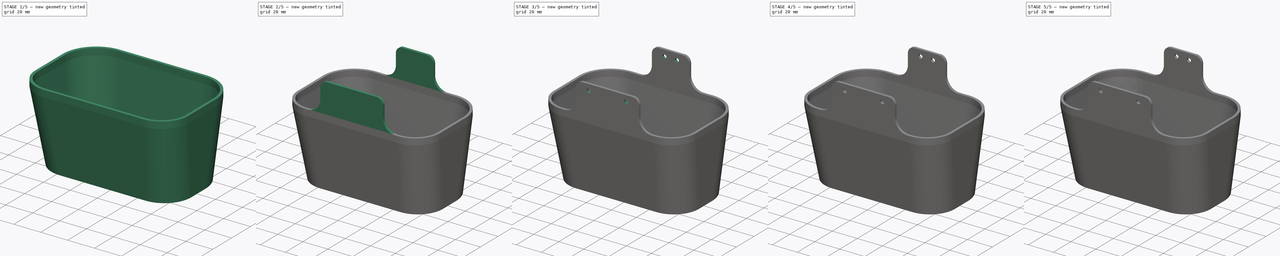
[diagram: build sequence overview — one tinted view per stage of 5, left to right]
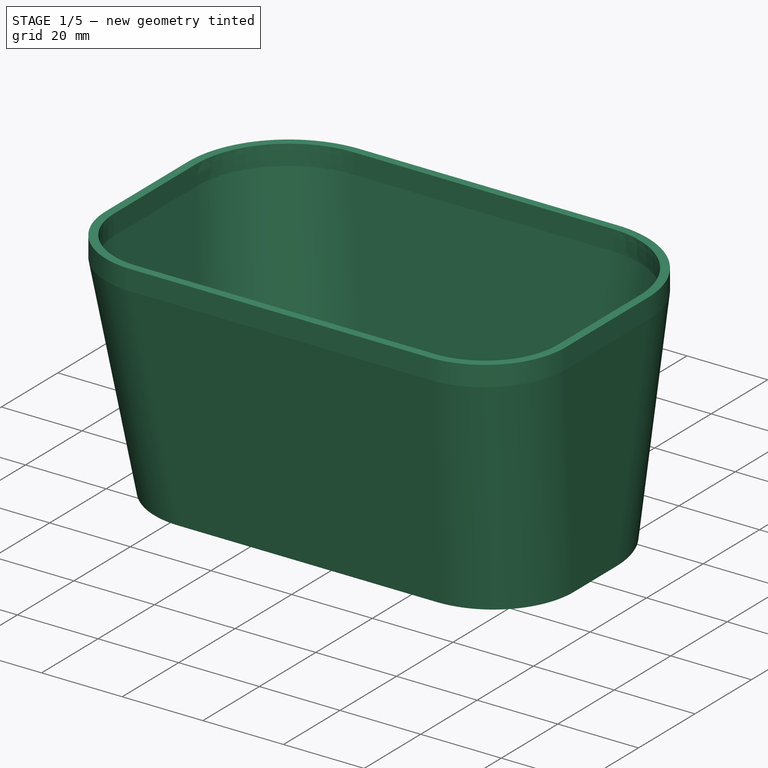
[diagram: stage 1 of 5 — iso view after this stage's code; geometry added in this stage tinted green]
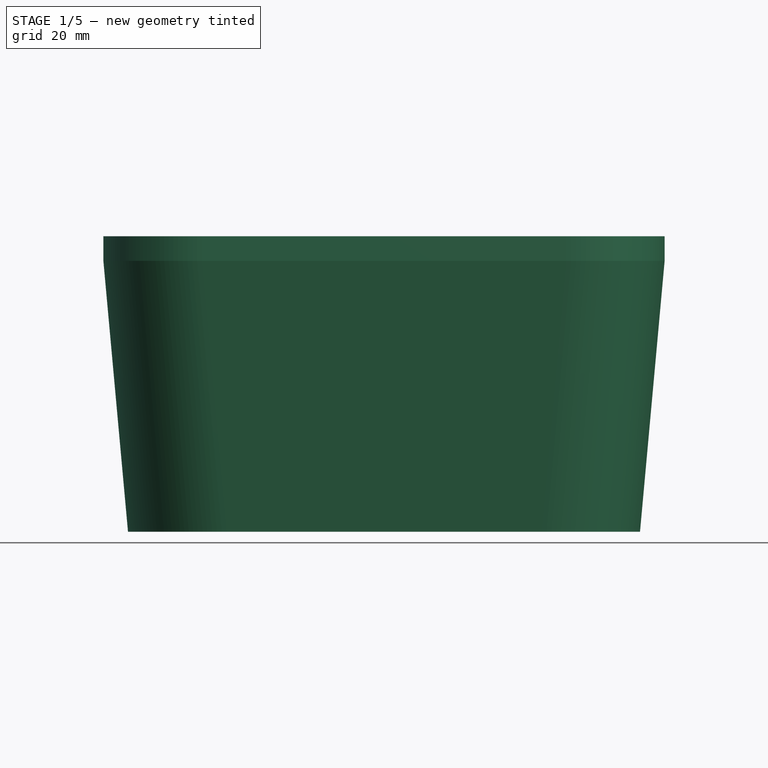
[diagram: stage 1 of 5 — front view after this stage's code; geometry added in this stage tinted green]
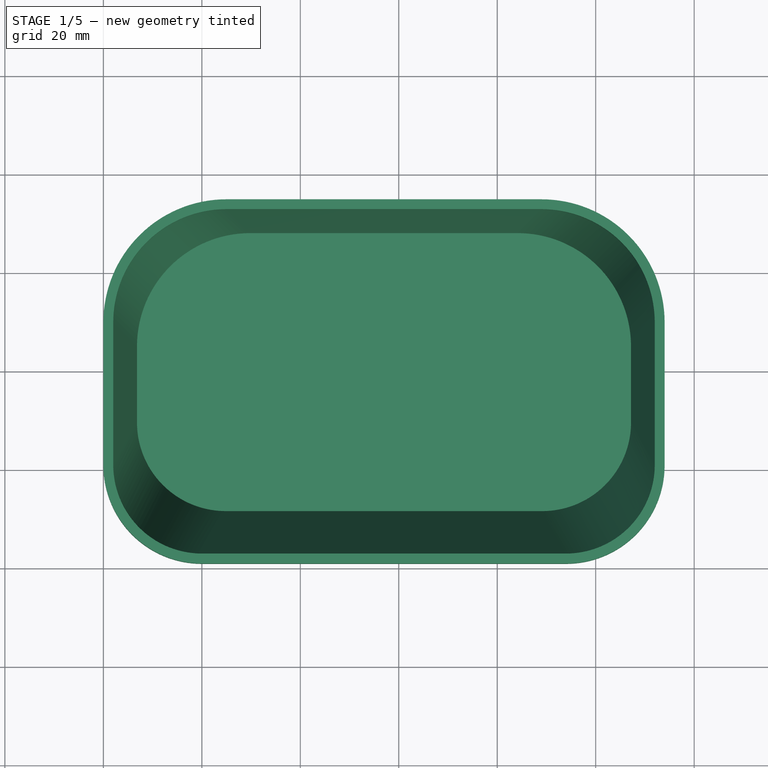
[diagram: stage 1 of 5 — top view after this stage's code; geometry added in this stage tinted green]
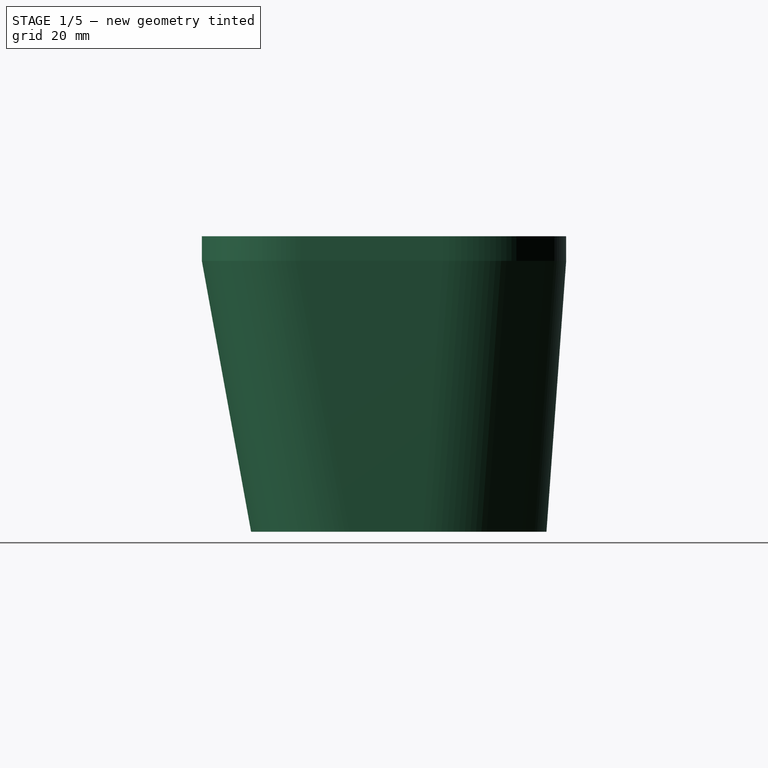
[diagram: stage 1 of 5 — right view after this stage's code; geometry added in this stage tinted green]
FCSTD DOCUMENT  (FreeCAD 0.18R4 (GitTag))
Label: Rear_Cover_long_1_8_TFT_v2
License: CreativeCommons Attribution-NonCommercial
LicenseURL: http://creativecommons.org/licenses/by-nc/4.0/
objects: Sketcher::SketchObject×12, PartDesign::Pocket×9, PartDesign::Pad×3, PartDesign::Fillet×3, PartDesign::AdditiveLoft×1, PartDesign::Thickness×1, PartDesign::Body×1
note: 43 computed .brp shape members not serialized (recipe doc carries the construction recipe); baked Part::Feature solids carry a one-line shape summary decoded from their .brp

FEATURE [Sketcher::SketchObject] Sketch
  AttachmentOffset = pos=(0,0,55) rot=(0,0,1;0rad)
  MapMode = 5
  Placement = pos=(0,0,55) rot=(0,0,1;0rad)
  Support = -> [XY_Plane]
  sketch-geometry (8):
    g0: LineSegment StartX=25 StartY=74 StartZ=0 EndX=89 EndY=74 EndZ=0
    g1: LineSegment StartX=114 StartY=49 StartZ=0 EndX=114 EndY=20 EndZ=0
    g2: LineSegment StartX=94 StartY=0 StartZ=0 EndX=20 EndY=0 EndZ=0
    g3: LineSegment StartX=0 StartY=20 StartZ=0 EndX=0 EndY=49 EndZ=0
    g4: ArcOfCircle CenterX=20 CenterY=20 CenterZ=0 NormalX=0 NormalY=0 NormalZ=1 AngleXU=0 Radius=20 StartAngle=3.14159 EndAngle=4.71239
    g5: ArcOfCircle CenterX=25 CenterY=49 CenterZ=0 NormalX=0 NormalY=0 NormalZ=1 AngleXU=0 Radius=25 StartAngle=1.5708 EndAngle=3.14159
    g6: ArcOfCircle CenterX=89 CenterY=49 CenterZ=0 NormalX=0 NormalY=0 NormalZ=1 AngleXU=0 Radius=25 StartAngle=0 EndAngle=1.5708
    g7: ArcOfCircle CenterX=94 CenterY=20 CenterZ=0 NormalX=0 NormalY=0 NormalZ=1 AngleXU=0 Radius=20 StartAngle=4.71239 EndAngle=6.28319
  constraints (20):
    c: Horizontal(g0)
    c: Horizontal(g2)
    c: Vertical(g1)
    c: Vertical(g3)
    c: Tangent(g2,g4) = 1.5708
    c: Tangent(g3,g4) = 1.5708
    c: Tangent(g3,g5) = 1.5708
    c: Tangent(g0,g5) = 1.5708
    c: Tangent(g0,g6) = 1.5708
    c: Tangent(g1,g6) = 1.5708
    c: Tangent(g1,g7) = 1.5708
    c: Tangent(g2,g7) = 1.5708
    c: Equal(g4,g7)
    c: Equal(g5,g6)
    c: Radius(g6) = 25
    c: Radius(g7) = 20
    c: PointOnObject(g2,g-1)
    c: PointOnObject(g3,g-2)
    c: DistanceX(g3,g1) = 114
    c: DistanceY(g2,g0) = 74
FEATURE [Sketcher::SketchObject] Sketch001
  MapMode = 5
  Support = -> [XY_Plane]
  sketch-geometry (8):
    g0: LineSegment StartX=25 StartY=10 StartZ=0 EndX=89 EndY=10 EndZ=0
    g1: LineSegment StartX=109 StartY=30 StartZ=0 EndX=109 EndY=45 EndZ=0
    g2: LineSegment StartX=84 StartY=70 StartZ=0 EndX=30 EndY=70 EndZ=0
    g3: LineSegment StartX=5 StartY=45 StartZ=0 EndX=5 EndY=30 EndZ=0
    g4: ArcOfCircle CenterX=30 CenterY=45 CenterZ=0 NormalX=0 NormalY=0 NormalZ=1 AngleXU=0 Radius=25 StartAngle=1.5708 EndAngle=3.14159
    g5: ArcOfCircle CenterX=84 CenterY=45 CenterZ=0 NormalX=0 NormalY=0 NormalZ=1 AngleXU=0 Radius=25 StartAngle=0 EndAngle=1.5708
    g6: ArcOfCircle CenterX=89 CenterY=30 CenterZ=0 NormalX=0 NormalY=0 NormalZ=1 AngleXU=0 Radius=20 StartAngle=4.71239 EndAngle=6.28319
    g7: ArcOfCircle CenterX=25 CenterY=30 CenterZ=0 NormalX=0 NormalY=0 NormalZ=1 AngleXU=0 Radius=20 StartAngle=3.14159 EndAngle=4.71239
  constraints (20):
    c: Horizontal(g0)
    c: Horizontal(g2)
    c: Vertical(g1)
    c: Vertical(g3)
    c: Tangent(g3,g4) = -1.5708
    c: Tangent(g2,g4) = -1.5708
    c: Tangent(g2,g5) = -1.5708
    c: Tangent(g1,g5) = -1.5708
    c: Tangent(g1,g6) = -1.5708
    c: Tangent(g0,g6) = -1.5708
    c: Tangent(g0,g7) = -1.5708
    c: Tangent(g3,g7) = -1.5708
    c: Equal(g4,g5)
    c: Equal(g7,g6)
    c: Radius(g5) = 25
    c: Radius(g6) = 20
    c: DistanceY(g0,g2) = 60
    c: DistanceX(g3,g1) = 104
    c: DistanceY(g-1,g0) = 10
    c: DistanceX(g-1,g3) = 5
FEATURE [PartDesign::AdditiveLoft] AdditiveLoft  label="Baseplate"
  Closed = false
  Profile = -> Sketch001
  Ruled = false
  Sections = -> [Sketch]
FEATURE [PartDesign::Thickness] Thickness  label="Make Shell"
  Base = -> AdditiveLoft [Face3]
  BaseFeature = -> AdditiveLoft
  Join = 0
  Mode = 0
  Reversed = true
  Value = 2
FEATURE [PartDesign::Pad] Pad  label="Connection Ring"
  BaseFeature = -> Thickness
  Length = 5
  Length2 = 100
  Profile = -> Thickness [Face10]
  Type = 0
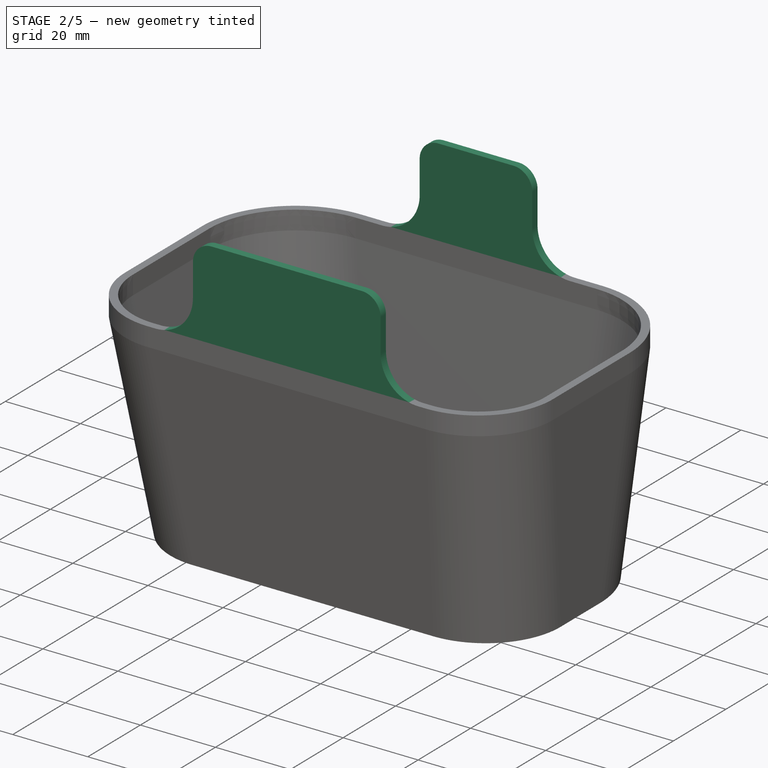
[diagram: stage 2 of 5 — iso view after this stage's code; geometry added in this stage tinted green]
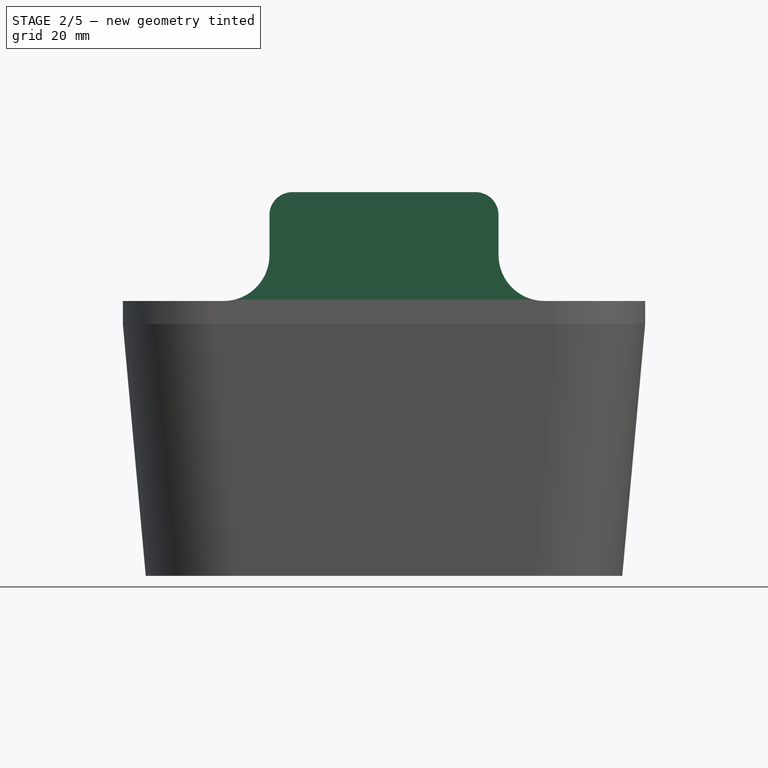
[diagram: stage 2 of 5 — front view after this stage's code; geometry added in this stage tinted green]
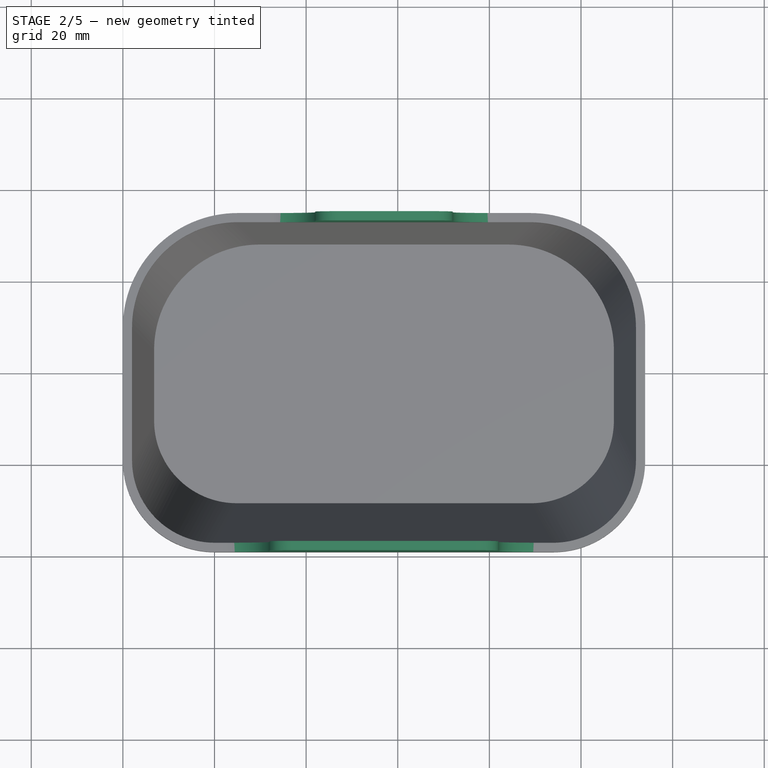
[diagram: stage 2 of 5 — top view after this stage's code; geometry added in this stage tinted green]
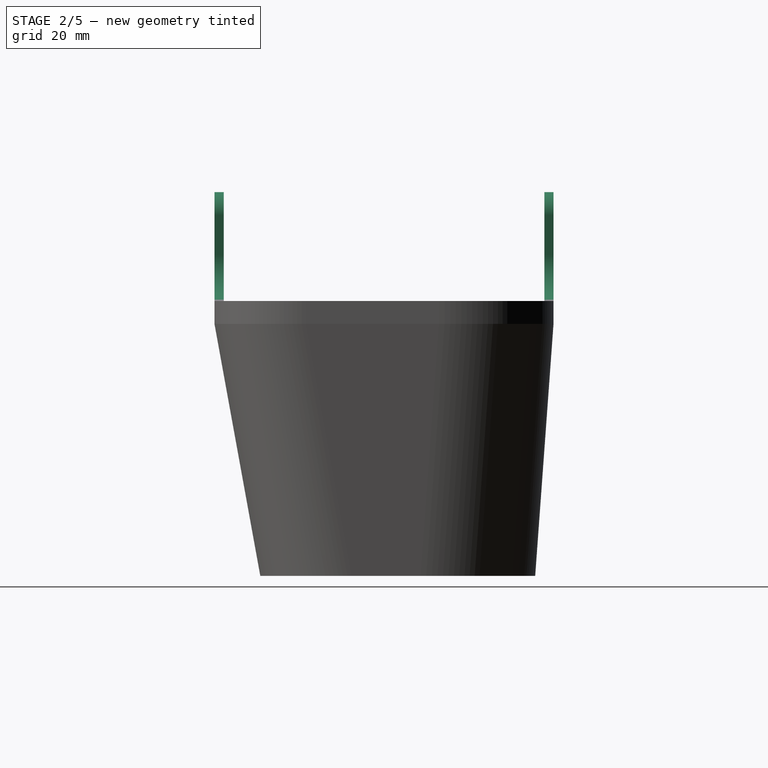
[diagram: stage 2 of 5 — right view after this stage's code; geometry added in this stage tinted green]
FEATURE [PartDesign::Pad] Pad001  label="Mounting Lip"
  BaseFeature = -> Pad
  Length = 23.75
  Length2 = 100
  Profile = -> Pad [Face18]
  Type = 0
FEATURE [Sketcher::SketchObject] Sketch002
  MapMode = 5
  Placement = pos=(0,0,0) rot=(1,0,0;1.5708rad)
  Support = -> [Pad001]
  sketch-geometry (10):
    g0: LineSegment StartX=0 StartY=83.75 StartZ=0 EndX=32 EndY=83.75 EndZ=0
    g1: LineSegment StartX=32 StartY=83.75 StartZ=0 EndX=32 EndY=70 EndZ=0
    g2: LineSegment StartX=22 StartY=60 StartZ=0 EndX=0 EndY=60 EndZ=0
    g3: LineSegment StartX=0 StartY=60 StartZ=0 EndX=0 EndY=83.75 EndZ=0
    g4: LineSegment StartX=114 StartY=83.75 StartZ=0 EndX=82 EndY=83.75 EndZ=0
    g5: LineSegment StartX=82 StartY=83.75 StartZ=0 EndX=82 EndY=70 EndZ=0
    g6: LineSegment StartX=92 StartY=60 StartZ=0 EndX=114 EndY=60 EndZ=0
    g7: LineSegment StartX=114 StartY=60 StartZ=0 EndX=114 EndY=83.75 EndZ=0
    g8: ArcOfCircle CenterX=22 CenterY=70 CenterZ=0 NormalX=0 NormalY=0 NormalZ=1 AngleXU=0 Radius=10 StartAngle=4.71239 EndAngle=6.28319
    g9: ArcOfCircle CenterX=92 CenterY=70 CenterZ=0 NormalX=0 NormalY=0 NormalZ=1 AngleXU=0 Radius=10 StartAngle=3.14159 EndAngle=4.71239
  constraints (28):
    c: Coincident(g0,g1)
    c: Coincident(g2,g3)
    c: Coincident(g3,g0)
    c: Horizontal(g0)
    c: Horizontal(g2)
    c: Vertical(g1)
    c: Vertical(g3)
    c: PointOnObject(g0,g-2)
    c: Coincident(g4,g5)
    c: Coincident(g6,g7)
    c: Coincident(g7,g4)
    c: Horizontal(g4)
    c: Horizontal(g6)
    c: Vertical(g5)
    c: Vertical(g7)
    c: DistanceX(g0,g4) = 50
    c: Tangent(g2,g8) = 1.5708
    c: Tangent(g1,g8) = 1.5708
    c: Tangent(g6,g9) = -1.5708
    c: Tangent(g5,g9) = -1.5708
    c: Equal(g8,g9)
    c: Radius(g8) = 10
    c: Equal(g0,g4)
    c: DistanceX(g0,g4) = 114
    c: DistanceY(g-1,g0) = 83.75
    c: Horizontal(g4,g0)
    c: Equal(g5,g1)
    c: DistanceY(g3,g3) = 23.75
FEATURE [PartDesign::Pocket] Pocket  label="Remove Upper Shell"
  BaseFeature = -> Pad001
  Length = 40
  Length2 = 100
  Profile = -> Sketch002
  Type = 0
FEATURE [Sketcher::SketchObject] Sketch003
  MapMode = 5
  Placement = pos=(0,74,0) rot=(0,0.707107,0.707107;3.14159rad)
  Support = -> [Pocket]
  sketch-geometry (10):
    g0: LineSegment StartX=-114 StartY=83.75 StartZ=0 EndX=-72 EndY=83.75 EndZ=0
    g1: LineSegment StartX=-72 StartY=83.75 StartZ=0 EndX=-72 EndY=70 EndZ=0
    g2: LineSegment StartX=-82 StartY=60 StartZ=0 EndX=-114 EndY=60 EndZ=0
    g3: LineSegment StartX=-114 StartY=60 StartZ=0 EndX=-114 EndY=83.75 EndZ=0
    g4: LineSegment StartX=0 StartY=83.75 StartZ=0 EndX=-42 EndY=83.75 EndZ=0
    g5: LineSegment StartX=-42 StartY=83.75 StartZ=0 EndX=-42 EndY=70 EndZ=0
    g6: LineSegment StartX=-32 StartY=60 StartZ=0 EndX=0 EndY=60 EndZ=0
    g7: LineSegment StartX=0 StartY=60 StartZ=0 EndX=0 EndY=83.75 EndZ=0
    g8: ArcOfCircle CenterX=-82 CenterY=70 CenterZ=0 NormalX=0 NormalY=0 NormalZ=1 AngleXU=0 Radius=10 StartAngle=4.71239 EndAngle=6.28319
    g9: ArcOfCircle CenterX=-32 CenterY=70 CenterZ=0 NormalX=0 NormalY=0 NormalZ=1 AngleXU=0 Radius=10 StartAngle=3.14159 EndAngle=4.71239
  constraints (28):
    c: Coincident(g0,g1)
    c: Coincident(g2,g3)
    c: Coincident(g3,g0)
    c: Horizontal(g0)
    c: Horizontal(g2)
    c: Vertical(g1)
    c: Vertical(g3)
    c: Coincident(g4,g5)
    c: Coincident(g6,g7)
    c: Coincident(g7,g4)
    c: Horizontal(g4)
    c: Horizontal(g6)
    c: Vertical(g5)
    c: Vertical(g7)
    c: PointOnObject(g4,g-2)
    c: DistanceX(g0,g4) = 30
    c: Tangent(g2,g8) = 1.5708
    c: Tangent(g1,g8) = 1.5708
    c: Tangent(g5,g9) = -1.5708
    c: Tangent(g6,g9) = -1.5708
    c: Equal(g9,g8)
    c: Radius(g9) = 10
    c: Horizontal(g4,g0)
    c: Equal(g1,g5)
    c: Equal(g4,g0)
    c: DistanceX(g0,g4) = 114
    c: DistanceY(g-1,g4) = 83.75
    c: DistanceY(g7,g7) = 23.75
FEATURE [PartDesign::Pocket] Pocket001  label="Remove Bottom Shell"
  BaseFeature = -> Pocket
  Length = 40
  Length2 = 100
  Profile = -> Sketch003
  Type = 0
FEATURE [PartDesign::Fillet] Fillet  label="Round Shell Corners"
  Base = -> Pocket001 [Edge94,Edge114,Edge113,Edge95]
  BaseFeature = -> Pocket001
  Radius = 5
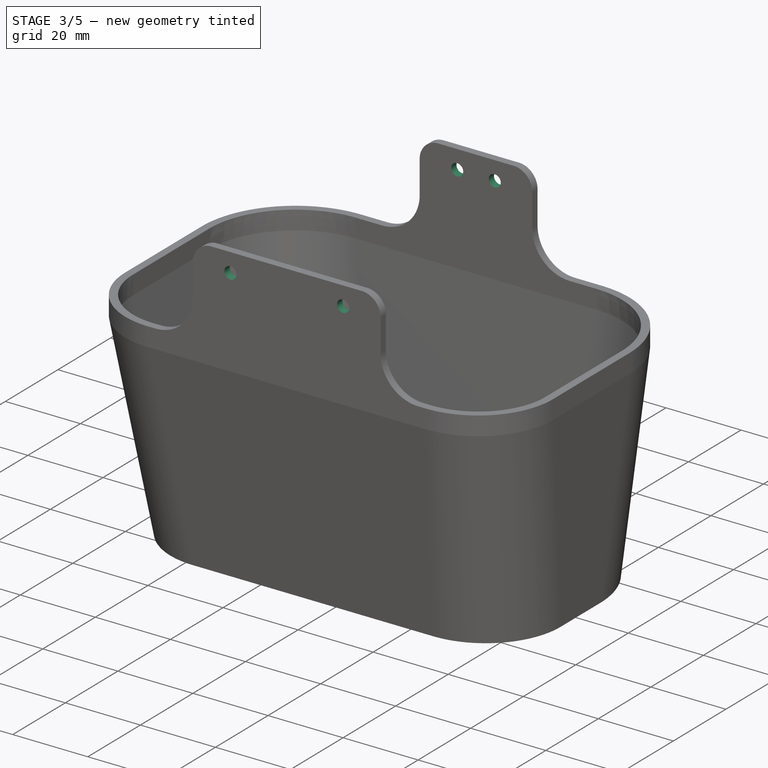
[diagram: stage 3 of 5 — iso view after this stage's code; geometry added in this stage tinted green]
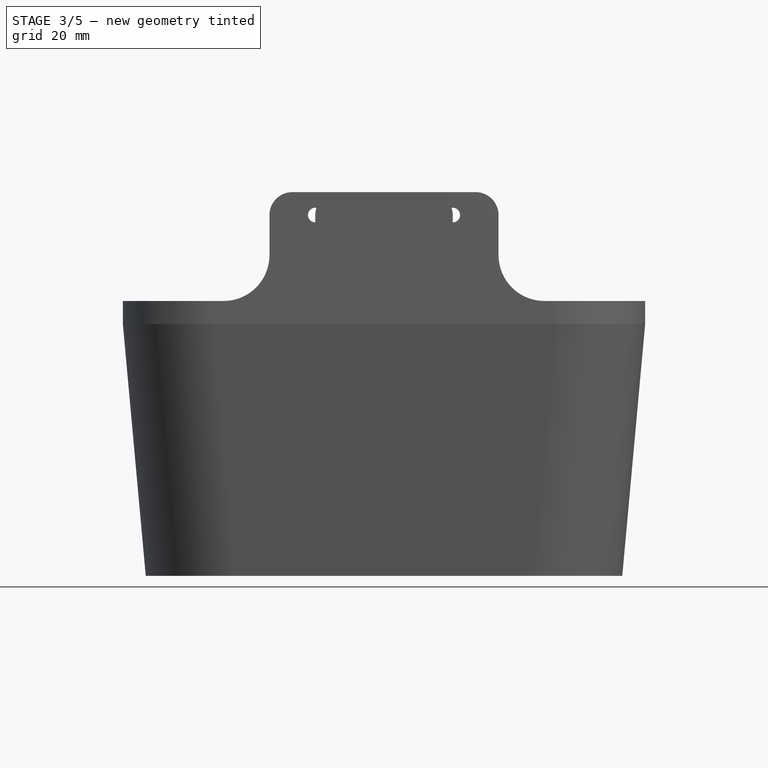
[diagram: stage 3 of 5 — front view after this stage's code; geometry added in this stage tinted green]
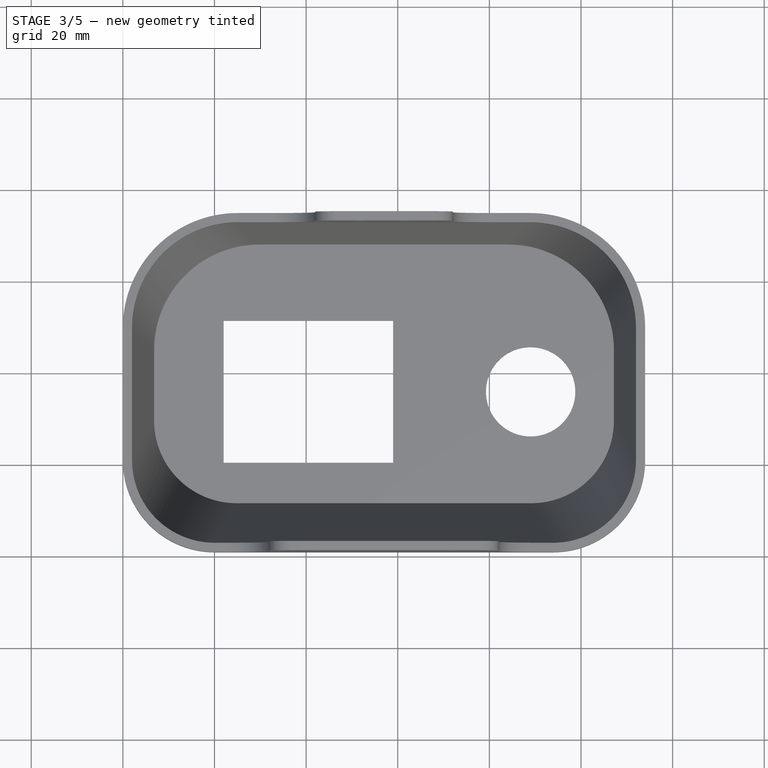
[diagram: stage 3 of 5 — top view after this stage's code; geometry added in this stage tinted green]
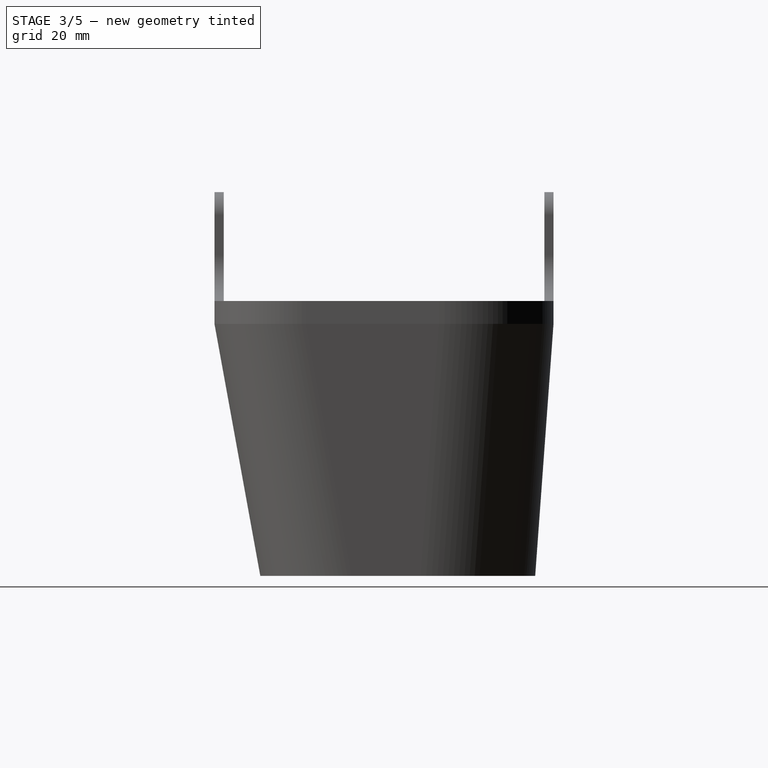
[diagram: stage 3 of 5 — right view after this stage's code; geometry added in this stage tinted green]
FEATURE [Sketcher::SketchObject] Sketch004
  MapMode = 5
  Placement = pos=(0,74,0) rot=(0,0.707107,0.707107;3.14159rad)
  Support = -> [Fillet]
  sketch-geometry (2):
    g0: Circle CenterX=-62 CenterY=78.75 CenterZ=0 NormalX=0 NormalY=0 NormalZ=1 AngleXU=0 Radius=1.6
    g1: Circle CenterX=-52 CenterY=78.75 CenterZ=0 NormalX=0 NormalY=0 NormalZ=1 AngleXU=0 Radius=1.6
  constraints (6):
    c: DistanceX(g0,g1) = 10
    c: Horizontal(g0,g1)
    c: DistanceY(g-1,g1) = 78.75
    c: DistanceX(g1,g-1) = 52
    c: Equal(g1,g0)
    c: Radius(g1) = 1.6
FEATURE [PartDesign::Pocket] Pocket002  label="Bottom Screwholes"
  BaseFeature = -> Fillet
  Length = 5
  Length2 = 100
  Profile = -> Sketch004
  Type = 0
FEATURE [Sketcher::SketchObject] Sketch005
  MapMode = 5
  Placement = pos=(0,0,0) rot=(1,0,0;1.5708rad)
  Support = -> [Pocket002]
  sketch-geometry (2):
    g0: Circle CenterX=42 CenterY=78.75 CenterZ=0 NormalX=0 NormalY=0 NormalZ=1 AngleXU=0 Radius=1.6
    g1: Circle CenterX=72 CenterY=78.75 CenterZ=0 NormalX=0 NormalY=0 NormalZ=1 AngleXU=0 Radius=1.6
  constraints (6):
    c: DistanceX(g0,g1) = 30
    c: Horizontal(g1,g0)
    c: Equal(g0,g1)
    c: Radius(g1) = 1.6
    c: DistanceY(g-1,g0) = 78.75
    c: DistanceX(g-1,g0) = 42
FEATURE [PartDesign::Pocket] Pocket003  label="Top Screwholes"
  BaseFeature = -> Pocket002
  Length = 5
  Length2 = 100
  Profile = -> Sketch005
  Type = 0
FEATURE [Sketcher::SketchObject] Sketch006
  MapMode = 5
  Placement = pos=(0,0,2) rot=(0,0,1;0rad)
  Support = -> [Pocket003]
  sketch-geometry (6):
    g0: LineSegment StartX=22 StartY=51.5 StartZ=0 EndX=59 EndY=51.5 EndZ=0
    g1: LineSegment StartX=59 StartY=51.5 StartZ=0 EndX=59 EndY=20.5 EndZ=0
    g2: LineSegment StartX=59 StartY=20.5 StartZ=0 EndX=22 EndY=20.5 EndZ=0
    g3: LineSegment StartX=22 StartY=20.5 StartZ=0 EndX=22 EndY=51.5 EndZ=0
    g4: Circle CenterX=89 CenterY=36 CenterZ=0 NormalX=0 NormalY=0 NormalZ=1 AngleXU=0 Radius=9.75
    g5: LineSegment [constr] StartX=89 StartY=36 StartZ=0 EndX=22 EndY=36 EndZ=0
  constraints (17):
    c: Coincident(g0,g1)
    c: Coincident(g1,g2)
    c: Coincident(g2,g3)
    c: Coincident(g3,g0)
    c: Horizontal(g0)
    c: Horizontal(g2)
    c: Vertical(g1)
    c: Vertical(g3)
    c: DistanceX(g0,g0) = 37
    c: DistanceY(g3,g3) = 31
    c: Radius(g4) = 9.75
    c: Coincident(g5,g4)
    c: PointOnObject(g5,g3)
    c: Symmetric(g0,g1,g5)
    c: DistanceX(g-1,g1) = 59
    c: DistanceX(g-1,g4) = 89
    c: DistanceY(g-1,g5) = 36
FEATURE [PartDesign::Pocket] Pocket004  label="Display and Power Switch"
  BaseFeature = -> Pocket003
  Length = 5
  Length2 = 100
  Profile = -> Sketch006
  Type = 0
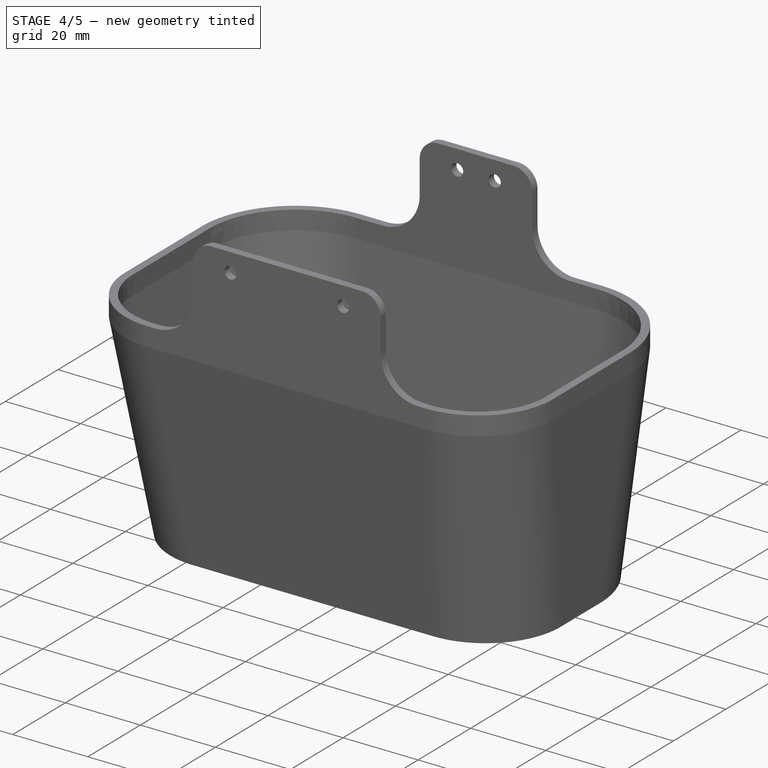
[diagram: stage 4 of 5 — iso view after this stage's code; geometry added in this stage tinted green]
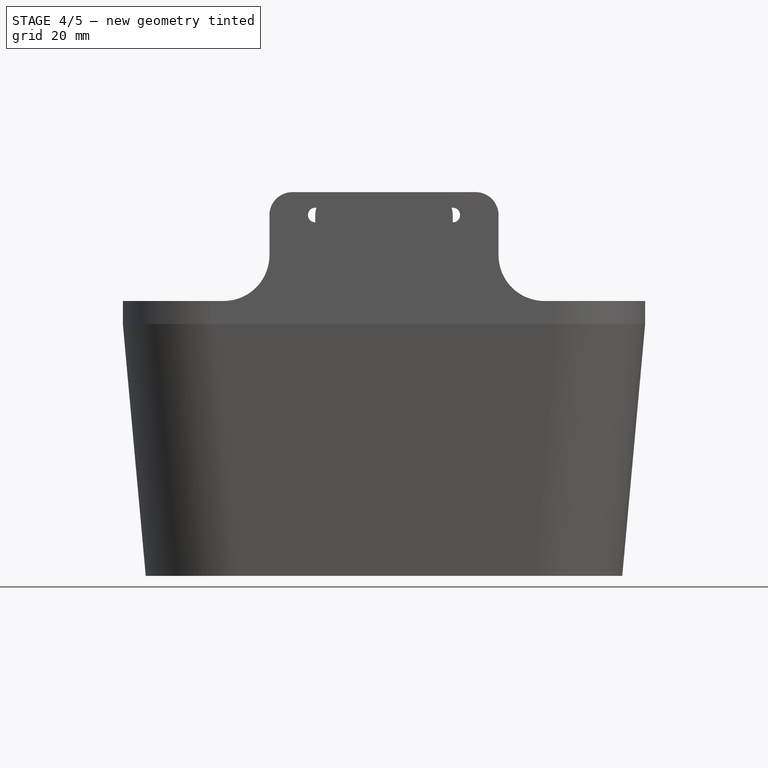
[diagram: stage 4 of 5 — front view after this stage's code; geometry added in this stage tinted green]
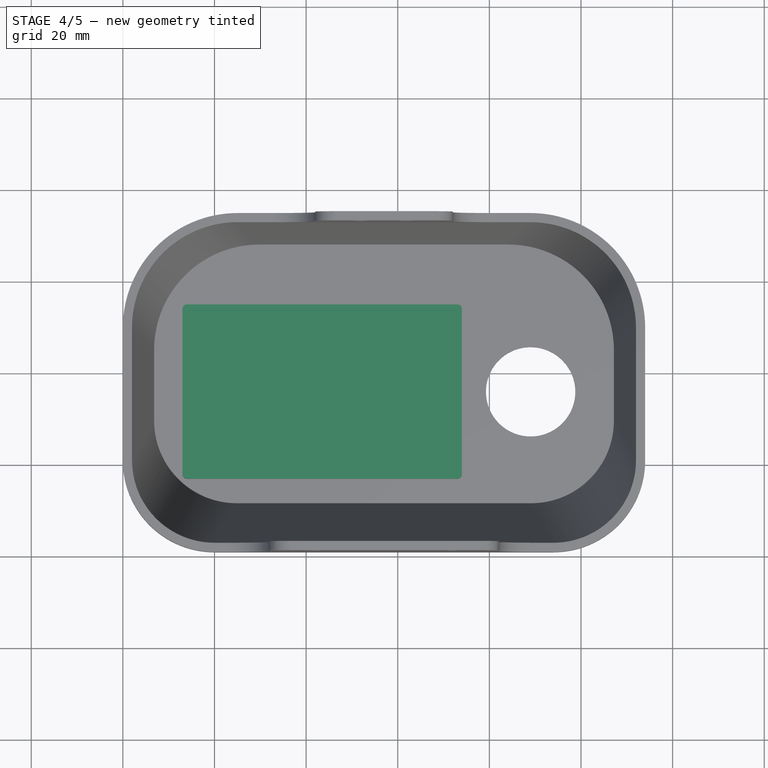
[diagram: stage 4 of 5 — top view after this stage's code; geometry added in this stage tinted green]
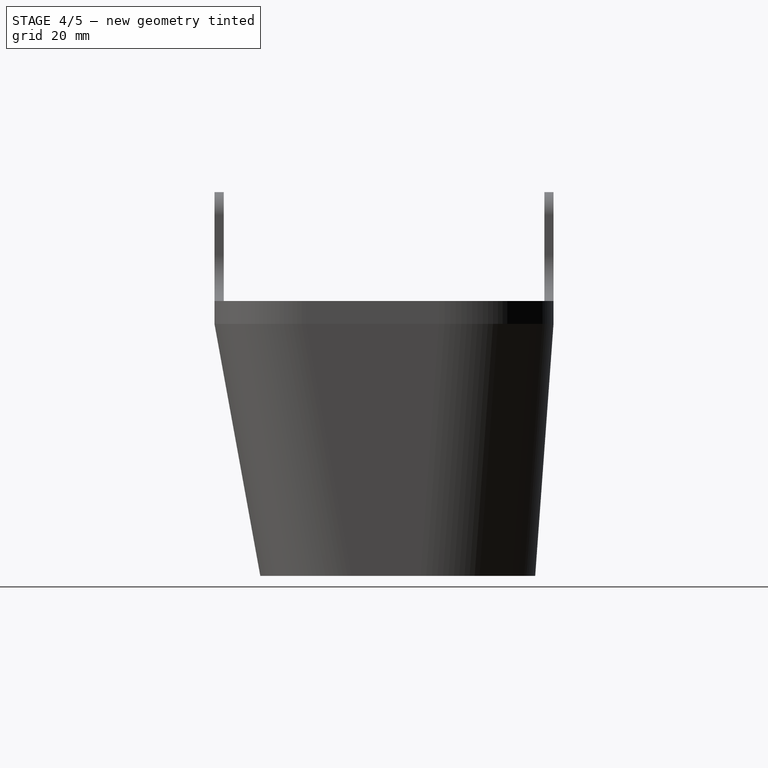
[diagram: stage 4 of 5 — right view after this stage's code; geometry added in this stage tinted green]
FEATURE [PartDesign::Fillet] Fillet001  label="Smooth Display Corners"
  Base = -> Pocket004 [Edge125,Edge130,Edge128,Edge126]
  BaseFeature = -> Pocket004
  Radius = 0.4
FEATURE [Sketcher::SketchObject] Sketch008
  MapMode = 5
  Placement = pos=(0,0,2) rot=(0,0,1;0rad)
  Support = -> [Fillet001]
  sketch-geometry (8):
    g0: LineSegment StartX=14 StartY=55 StartZ=0 EndX=73 EndY=55 EndZ=0
    g1: LineSegment StartX=74 StartY=54 StartZ=0 EndX=74 EndY=18 EndZ=0
    g2: LineSegment StartX=73 StartY=17 StartZ=0 EndX=14 EndY=17 EndZ=0
    g3: LineSegment StartX=13 StartY=18 StartZ=0 EndX=13 EndY=54 EndZ=0
    g4: ArcOfCircle CenterX=14 CenterY=54 CenterZ=0 NormalX=0 NormalY=0 NormalZ=1 AngleXU=0 Radius=1 StartAngle=1.5708 EndAngle=3.14159
    g5: ArcOfCircle CenterX=73 CenterY=54 CenterZ=0 NormalX=0 NormalY=0 NormalZ=1 AngleXU=0 Radius=1 StartAngle=-3.6e-15 EndAngle=1.5708
    g6: ArcOfCircle CenterX=73 CenterY=18 CenterZ=0 NormalX=0 NormalY=0 NormalZ=1 AngleXU=0 Radius=1 StartAngle=4.71239 EndAngle=6.28319
    g7: ArcOfCircle CenterX=14 CenterY=18 CenterZ=0 NormalX=0 NormalY=0 NormalZ=1 AngleXU=0 Radius=1 StartAngle=3.14159 EndAngle=4.71239
  constraints (20):
    c: Horizontal(g0)
    c: Horizontal(g2)
    c: Vertical(g1)
    c: Vertical(g3)
    c: Tangent(g3,g4) = 1.5708
    c: Tangent(g0,g4) = 1.5708
    c: Tangent(g0,g5) = 1.5708
    c: Tangent(g1,g5) = 1.5708
    c: Tangent(g1,g6) = 1.5708
    c: Tangent(g2,g6) = 1.5708
    c: Tangent(g2,g7) = 1.5708
    c: Tangent(g3,g7) = 1.5708
    c: Equal(g4,g5)
    c: Equal(g5,g6)
    c: Equal(g6,g7)
    c: Radius(g5) = 1
    c: DistanceX(g3,g1) = 61
    c: DistanceY(g2,g0) = 38
    c: DistanceY(g-1,g2) = 17
    c: DistanceX(g-1,g3) = 13
FEATURE [PartDesign::Pad] Pad006  label="TFT PCB Base"
  BaseFeature = -> Fillet001
  Length = 4
  Length2 = 100
  Profile = -> Sketch008
  Type = 0
FEATURE [Sketcher::SketchObject] Sketch013
  MapMode = 5
  Placement = pos=(0,0,6) rot=(0,0,1;0rad)
  Support = -> [Pad006]
  sketch-geometry (4):
    g0: LineSegment StartX=14.25 StartY=18.25 StartZ=0 EndX=72.75 EndY=18.25 EndZ=0
    g1: LineSegment StartX=72.75 StartY=18.25 StartZ=0 EndX=72.75 EndY=53.75 EndZ=0
    g2: LineSegment StartX=72.75 StartY=53.75 StartZ=0 EndX=14.25 EndY=53.75 EndZ=0
    g3: LineSegment StartX=14.25 StartY=53.75 StartZ=0 EndX=14.25 EndY=18.25 EndZ=0
  constraints (12):
    c: Coincident(g0,g1)
    c: Coincident(g1,g2)
    c: Coincident(g2,g3)
    c: Coincident(g3,g0)
    c: Horizontal(g0)
    c: Horizontal(g2)
    c: Vertical(g1)
    c: Vertical(g3)
    c: DistanceX(g2,g2) = 58.5
    c: DistanceY(g3,g3) = 35.5
    c: DistanceY(g-1,g0) = 18.25
    c: DistanceX(g-1,g0) = 14.25
FEATURE [PartDesign::Pocket] Pocket005  label="TFT PCB Pocket"
  BaseFeature = -> Pad006
  Length = 2
  Length2 = 100
  Profile = -> Sketch013
  Type = 0
FEATURE [PartDesign::Fillet] Fillet002  label="TFT PCB Pocket Fillet"
  Base = -> Pocket005 [Edge219,Edge216,Edge217,Edge221]
  BaseFeature = -> Pocket005
  Radius = 0.4
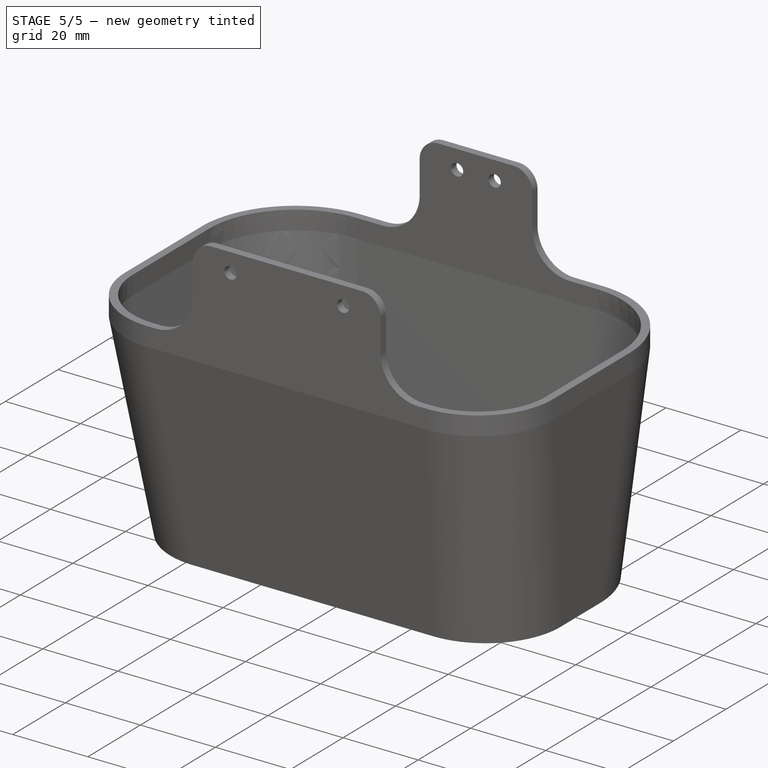
[diagram: stage 5 of 5 — iso view after this stage's code; geometry added in this stage tinted green]
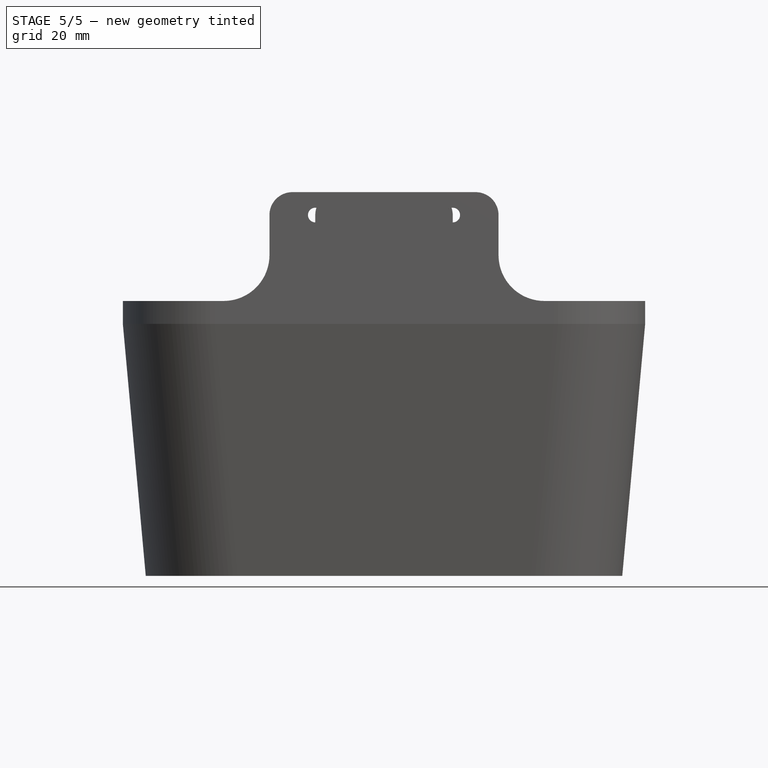
[diagram: stage 5 of 5 — front view after this stage's code; geometry added in this stage tinted green]
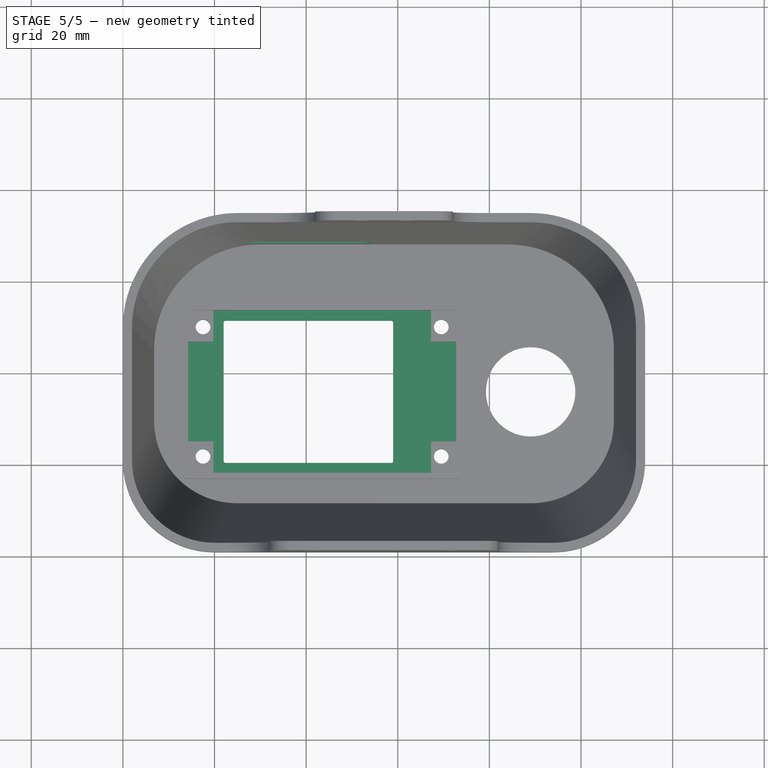
[diagram: stage 5 of 5 — top view after this stage's code; geometry added in this stage tinted green]
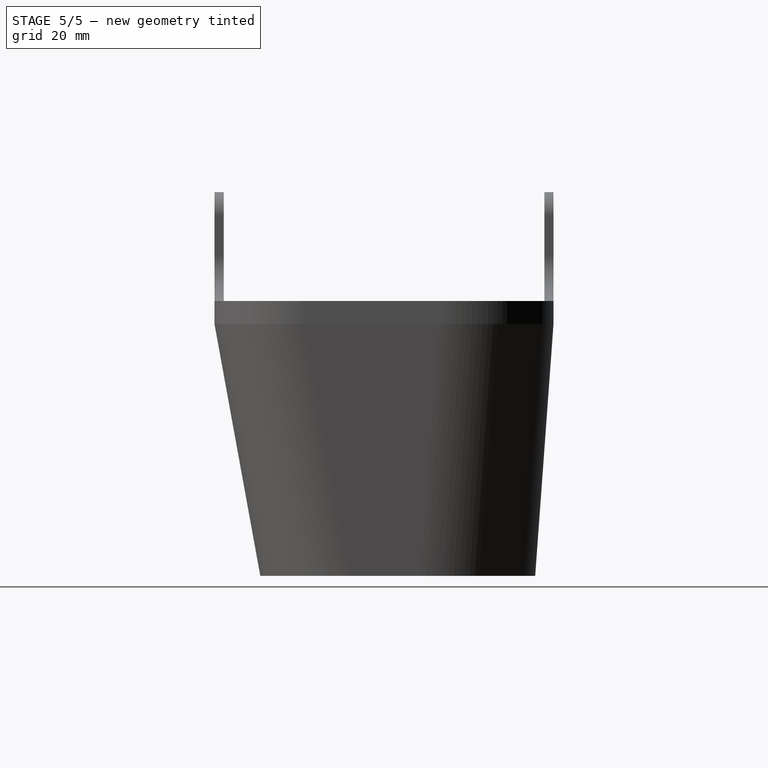
[diagram: stage 5 of 5 — right view after this stage's code; geometry added in this stage tinted green]
FEATURE [Sketcher::SketchObject] Sketch014
  MapMode = 5
  Placement = pos=(0,0,4) rot=(0,0,1;0rad)
  Support = -> [Fillet002]
  sketch-geometry (12):
    g0: LineSegment StartX=19.75 StartY=53.75 StartZ=0 EndX=67.25 EndY=53.75 EndZ=0
    g1: LineSegment StartX=67.25 StartY=53.75 StartZ=0 EndX=67.25 EndY=46.875 EndZ=0
    g2: LineSegment StartX=67.25 StartY=18.25 StartZ=0 EndX=19.75 EndY=18.25 EndZ=0
    g3: LineSegment StartX=19.75 StartY=18.25 StartZ=0 EndX=19.75 EndY=25.125 EndZ=0
    g4: LineSegment StartX=14.25 StartY=46.875 StartZ=0 EndX=19.75 EndY=46.875 EndZ=0
    g5: LineSegment StartX=72.75 StartY=46.875 StartZ=0 EndX=72.75 EndY=25.125 EndZ=0
    g6: LineSegment StartX=72.75 StartY=25.125 StartZ=0 EndX=67.25 EndY=25.125 EndZ=0
    g7: LineSegment StartX=14.25 StartY=25.125 StartZ=0 EndX=14.25 EndY=46.875 EndZ=0
    g8: LineSegment StartX=19.75 StartY=46.875 StartZ=0 EndX=19.75 EndY=53.75 EndZ=0
    g9: LineSegment StartX=67.25 StartY=46.875 StartZ=0 EndX=72.75 EndY=46.875 EndZ=0
    g10: LineSegment StartX=67.25 StartY=25.125 StartZ=0 EndX=67.25 EndY=18.25 EndZ=0
    g11: LineSegment StartX=19.75 StartY=25.125 StartZ=0 EndX=14.25 EndY=25.125 EndZ=0
  constraints (32):
    c: Coincident(g0,g1)
    c: Coincident(g10,g2)
    c: Coincident(g2,g3)
    c: Coincident(g8,g0)
    c: Horizontal(g0)
    c: Vertical(g1)
    c: Vertical(g3)
    c: DistanceX(g0,g0) = 47.5
    c: DistanceY(g3,g8) = 35.5
    c: DistanceX(g-1,g2) = 19.75
    c: DistanceY(g-1,g2) = 18.25
    c: Coincident(g9,g5)
    c: Coincident(g5,g6)
    c: Coincident(g11,g7)
    c: Coincident(g7,g4)
    c: Tangent(g3,g8)
    c: Coincident(g4,g8)
    c: Tangent(g4,g9)
    c: Coincident(g1,g9)
    c: Tangent(g1,g10)
    c: Coincident(g6,g10)
    c: Coincident(g11,g3)
    c: Tangent(g6,g11)
    c: DistanceX(g4,g5) = 58.5
    c: Equal(g4,g11)
    c: Equal(g11,g9)
    c: Equal(g9,g6)
    c: Equal(g5,g7)
    c: Equal(g3,g8)
    c: Equal(g8,g1)
    c: Equal(g1,g10)
    c: DistanceY(g7,g7) = 21.75
FEATURE [PartDesign::Pocket] Pocket006  label="TFT Screen Pocket"
  BaseFeature = -> Fillet002
  Length = 3
  Length2 = 100
  Profile = -> Sketch014
  Type = 0
FEATURE [Sketcher::SketchObject] Sketch015
  MapMode = 5
  Placement = pos=(0,0,4) rot=(0,0,1;0rad)
  Support = -> [Pocket006]
  sketch-geometry (4):
    g0: Circle CenterX=17.5 CenterY=50.13 CenterZ=0 NormalX=0 NormalY=0 NormalZ=1 AngleXU=0 Radius=1.6
    g1: Circle CenterX=69.5 CenterY=50.13 CenterZ=0 NormalX=0 NormalY=0 NormalZ=1 AngleXU=0 Radius=1.6
    g2: Circle CenterX=69.5 CenterY=21.88 CenterZ=0 NormalX=0 NormalY=0 NormalZ=1 AngleXU=0 Radius=1.6
    g3: Circle CenterX=17.5 CenterY=21.88 CenterZ=0 NormalX=0 NormalY=0 NormalZ=1 AngleXU=0 Radius=1.6
  constraints (12):
    c: Horizontal(g0,g1)
    c: Horizontal(g3,g2)
    c: Vertical(g3,g0)
    c: Vertical(g2,g1)
    c: DistanceX(g0,g1) = 52
    c: DistanceY(g3,g0) = 28.25
    c: DistanceX(g-1,g3) = 17.5
    c: DistanceY(g-1,g3) = 21.88
    c: Equal(g3,g0)
    c: Equal(g0,g1)
    c: Equal(g1,g2)
    c: Radius(g0) = 1.6
FEATURE [PartDesign::Pocket] Pocket007  label="TFT Screwholes"
  BaseFeature = -> Pocket006
  Length = 5
  Length2 = 100
  Profile = -> Sketch015
  Type = 0
FEATURE [Sketcher::SketchObject] Sketch214
  MapMode = 5
  Placement = pos=(0,74,0) rot=(0,0.707107,0.707107;3.14159rad)
  Support = -> [Pocket007]
  sketch-geometry (4):
    g0: ArcOfCircle CenterX=-52.5 CenterY=7.25 CenterZ=0 NormalX=0 NormalY=0 NormalZ=1 AngleXU=0 Radius=1.75 StartAngle=1.5708 EndAngle=4.71239
    g1: ArcOfCircle CenterX=-28.5 CenterY=7.25 CenterZ=0 NormalX=0 NormalY=0 NormalZ=1 AngleXU=0 Radius=1.75 StartAngle=4.71239 EndAngle=7.85398
    g2: LineSegment StartX=-52.5 StartY=5.5 StartZ=0 EndX=-28.5 EndY=5.5 EndZ=0
    g3: LineSegment StartX=-52.5 StartY=9 StartZ=0 EndX=-28.5 EndY=9 EndZ=0
  constraints (10):
    c: Tangent(g0,g3) = 1.5708
    c: Tangent(g0,g2) = -1.5708
    c: Tangent(g2,g1) = -1.5708
    c: Tangent(g3,g1) = 1.5708
    c: Horizontal(g2)
    c: Equal(g0,g1)
    c: Radius(g0) = 1.75
    c: DistanceX(g0,g1) = 24
    c: DistanceY(g-1,g1) = 7.25
    c: DistanceX(g1,g-1) = 28.5
FEATURE [PartDesign::Pocket] Pocket008
  BaseFeature = -> Pocket007
  Length = 7
  Length2 = 100
  Profile = -> Sketch214
  Type = 0
FEATURE [PartDesign::Body] Body  label="Rear_Cover_long"
  Group = -> [Sketch,Sketch001,AdditiveLoft,Thickness,Pad,Pad001,Sketch002,Pocket,Sketch003,Pocket001,Fillet,Sketch004,Pocket002,Sketch005,Pocket003,Sketch006,Pocket004,Fillet001,Sketch008,Pad006,Sketch013,Pocket005,Fillet002,Sketch014,Pocket006,Sketch015,Pocket007,Sketch214,Pocket008]
  Origin = -> Origin
  Tip = -> Pocket008
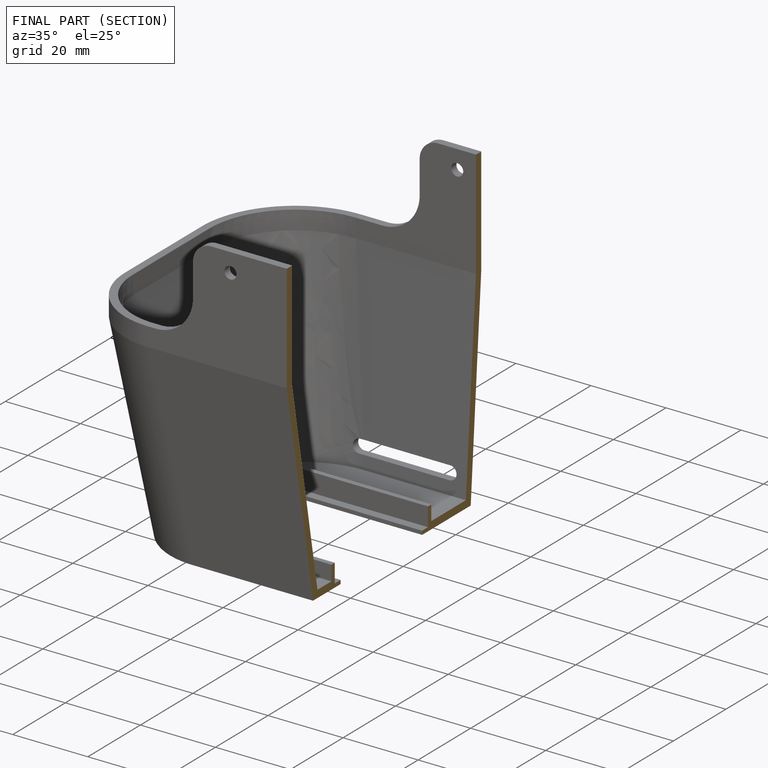
[diagram: finished part — half-section view (interior)]
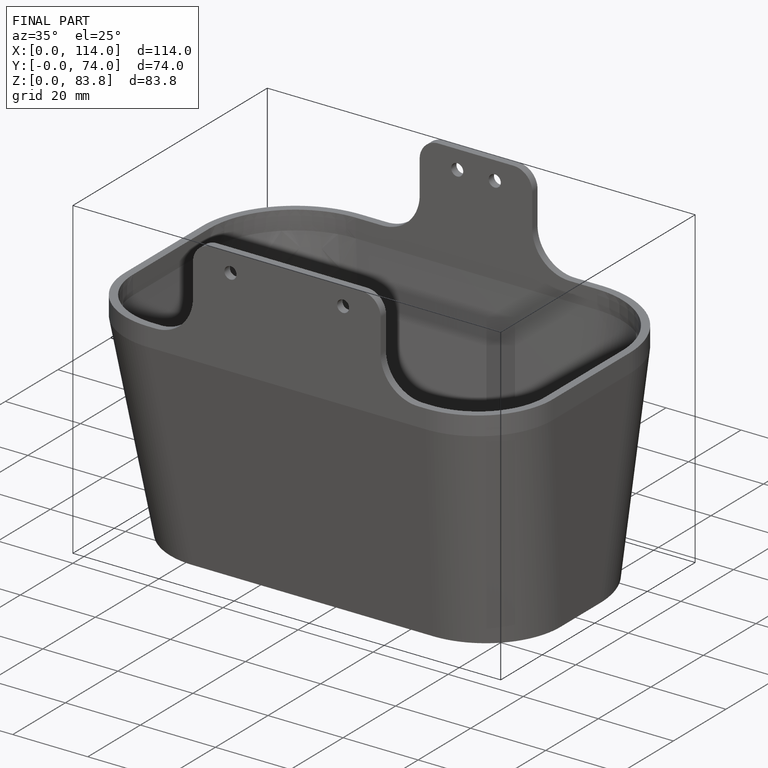
[diagram: finished part — iso view with bounding-box wireframe]
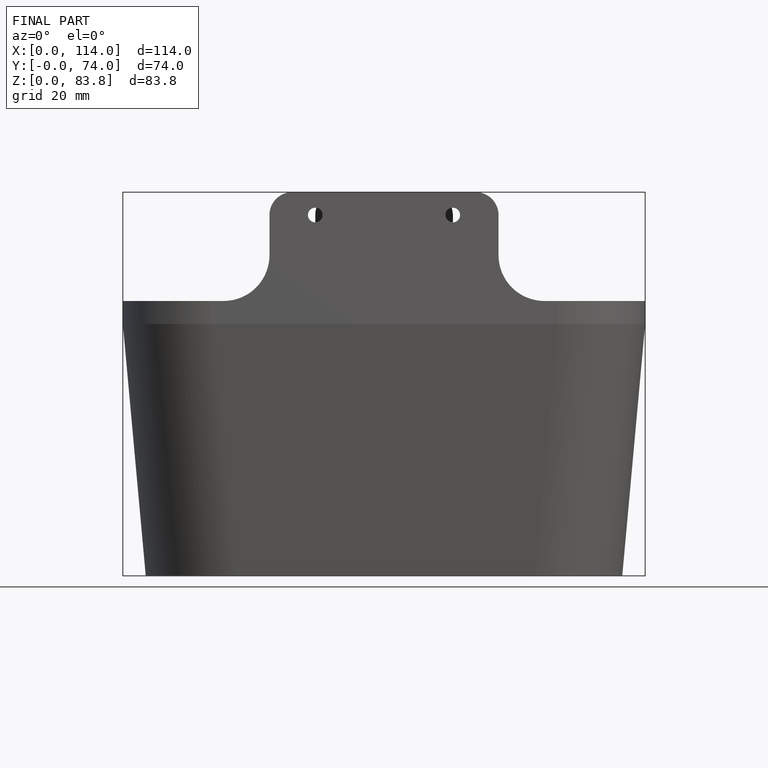
[diagram: finished part — front view with bounding-box wireframe]
